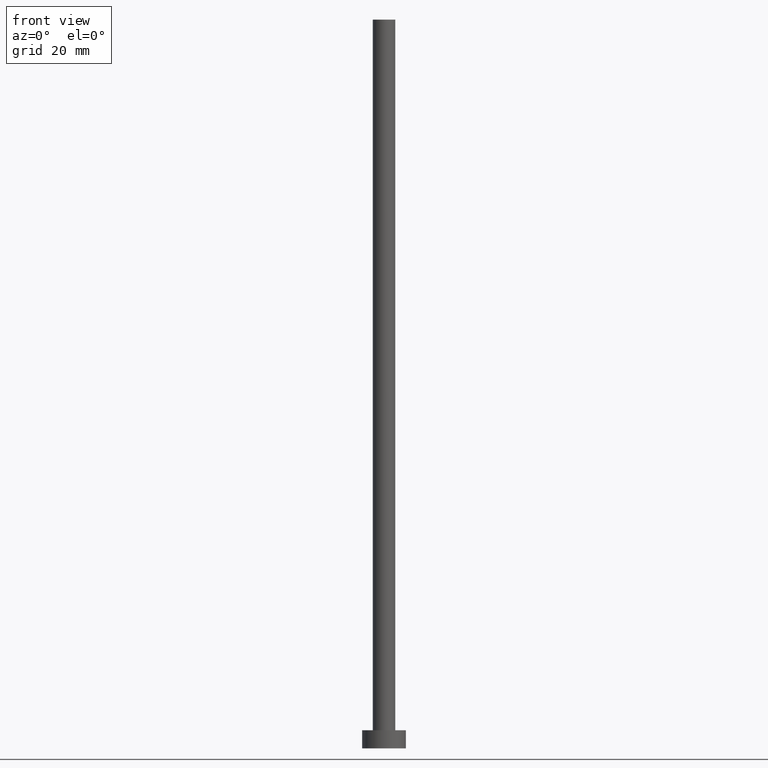
[diagram: clean part render]
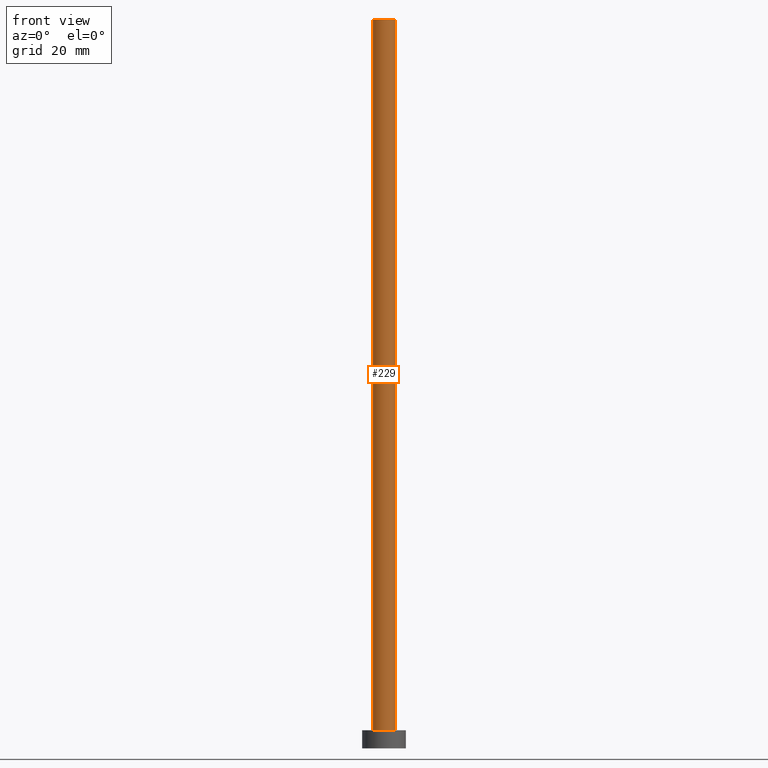
[diagram: same view with one face highlighted and labeled with its STEP entity id]
A machine part, front view. The second image highlights one B-rep face of the part: STEP entity #229.
In plain terms, the highlighted cylindrical surface (edge-blend (fillet) strip) has radius 3.1 mm, axis along (-0, -0, -1).
Its self-contained STEP definition (entity closure, byte-faithful):
#1 = LINE ( 'NONE', #76, #29 ) ;
#2 = DIRECTION ( 'NONE',  ( -0.000000000000000000, -0.000000000000000000, -1.000000000000000000 ) ) ;
#3 = CYLINDRICAL_SURFACE ( 'NONE', #182, 3.100000000000000089 ) ;
#6 = CARTESIAN_POINT ( 'NONE',  ( -3.100000000000000089, 0.000000000000000000, 5.000000000000000000 ) ) ;
#12 = CIRCLE ( 'NONE', #204, 3.100000000000000089 ) ;
#27 = EDGE_CURVE ( 'NONE', #146, #160, #212, .T. ) ;
#29 = VECTOR ( 'NONE', #236, 1000.000000000000000 ) ;
#52 = CARTESIAN_POINT ( 'NONE',  ( -3.100000000000000089, 0.000000000000000000, 200.0000000000000000 ) ) ;
#75 = DIRECTION ( 'NONE',  ( 1.000000000000000000, 0.000000000000000000, 0.000000000000000000 ) ) ;
#76 = CARTESIAN_POINT ( 'NONE',  ( -3.100000000000000089, 0.000000000000000000, 200.0000000000000000 ) ) ;
#77 = CARTESIAN_POINT ( 'NONE',  ( 3.100000000000000089, 3.796405077356794918E-16, 5.000000000000000000 ) ) ;
#87 = DIRECTION ( 'NONE',  ( 1.000000000000000000, 0.000000000000000000, 0.000000000000000000 ) ) ;
#88 = ORIENTED_EDGE ( 'NONE', *, *, #157, .F. ) ;
#96 = DIRECTION ( 'NONE',  ( 0.000000000000000000, 0.000000000000000000, 1.000000000000000000 ) ) ;
#102 = DIRECTION ( 'NONE',  ( -1.000000000000000000, 0.000000000000000000, 0.000000000000000000 ) ) ;
#106 = ORIENTED_EDGE ( 'NONE', *, *, #196, .T. ) ;
#108 = VECTOR ( 'NONE', #2, 1000.000000000000000 ) ;
#121 = CARTESIAN_POINT ( 'NONE',  ( 3.100000000000000089, 3.796405077356794918E-16, 200.0000000000000000 ) ) ;
#127 = EDGE_LOOP ( 'NONE', ( #88, #161, #106, #185 ) ) ;
#146 = VERTEX_POINT ( 'NONE', #52 ) ;
#152 = EDGE_CURVE ( 'NONE', #227, #164, #12, .T. ) ;
#157 = EDGE_CURVE ( 'NONE', #160, #164, #217, .T. ) ;
#160 = VERTEX_POINT ( 'NONE', #121 ) ;
#161 = ORIENTED_EDGE ( 'NONE', *, *, #27, .F. ) ;
#164 = VERTEX_POINT ( 'NONE', #77 ) ;
#182 = AXIS2_PLACEMENT_3D ( 'NONE', #241, #198, #102 ) ;
#185 = ORIENTED_EDGE ( 'NONE', *, *, #152, .T. ) ;
#190 = CARTESIAN_POINT ( 'NONE',  ( 0.000000000000000000, 0.000000000000000000, 200.0000000000000000 ) ) ;
#195 = FACE_OUTER_BOUND ( 'NONE', #127, .T. ) ;
#196 = EDGE_CURVE ( 'NONE', #146, #227, #1, .T. ) ;
#198 = DIRECTION ( 'NONE',  ( -0.000000000000000000, -0.000000000000000000, -1.000000000000000000 ) ) ;
#202 = AXIS2_PLACEMENT_3D ( 'NONE', #190, #96, #87 ) ;
#204 = AXIS2_PLACEMENT_3D ( 'NONE', #208, #211, #75 ) ;
#208 = CARTESIAN_POINT ( 'NONE',  ( 0.000000000000000000, 0.000000000000000000, 5.000000000000000000 ) ) ;
#211 = DIRECTION ( 'NONE',  ( 0.000000000000000000, 0.000000000000000000, 1.000000000000000000 ) ) ;
#212 = CIRCLE ( 'NONE', #202, 3.100000000000000089 ) ;
#217 = LINE ( 'NONE', #239, #108 ) ;
#227 = VERTEX_POINT ( 'NONE', #6 ) ;
#229 = ADVANCED_FACE ( 'NONE', ( #195 ), #3, .T. ) ;
#236 = DIRECTION ( 'NONE',  ( -0.000000000000000000, -0.000000000000000000, -1.000000000000000000 ) ) ;
#239 = CARTESIAN_POINT ( 'NONE',  ( 3.100000000000000089, 3.796405077356794918E-16, 200.0000000000000000 ) ) ;
#241 = CARTESIAN_POINT ( 'NONE',  ( 0.000000000000000000, 0.000000000000000000, 200.0000000000000000 ) ) ;